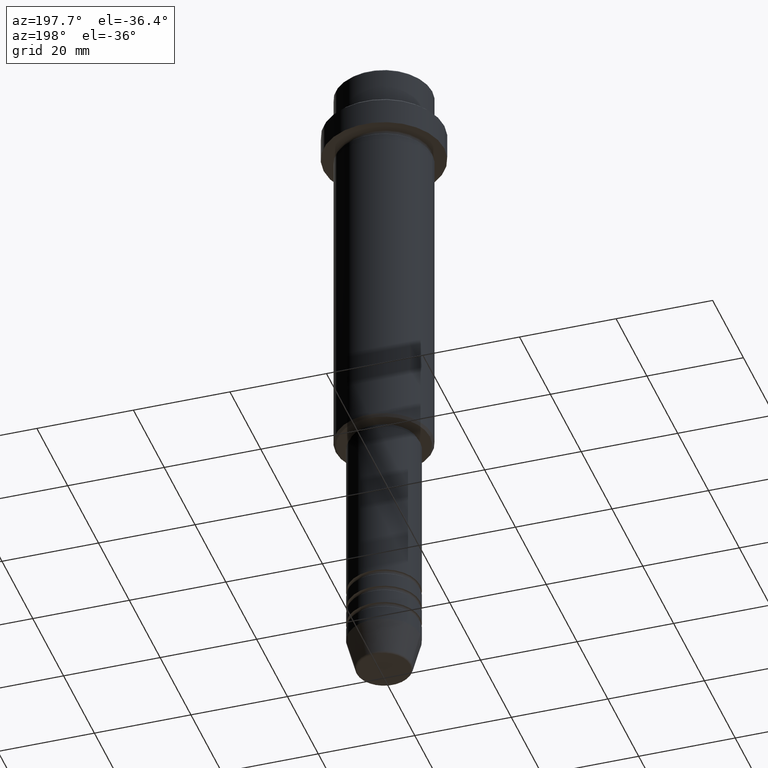
[diagram: clean part render]
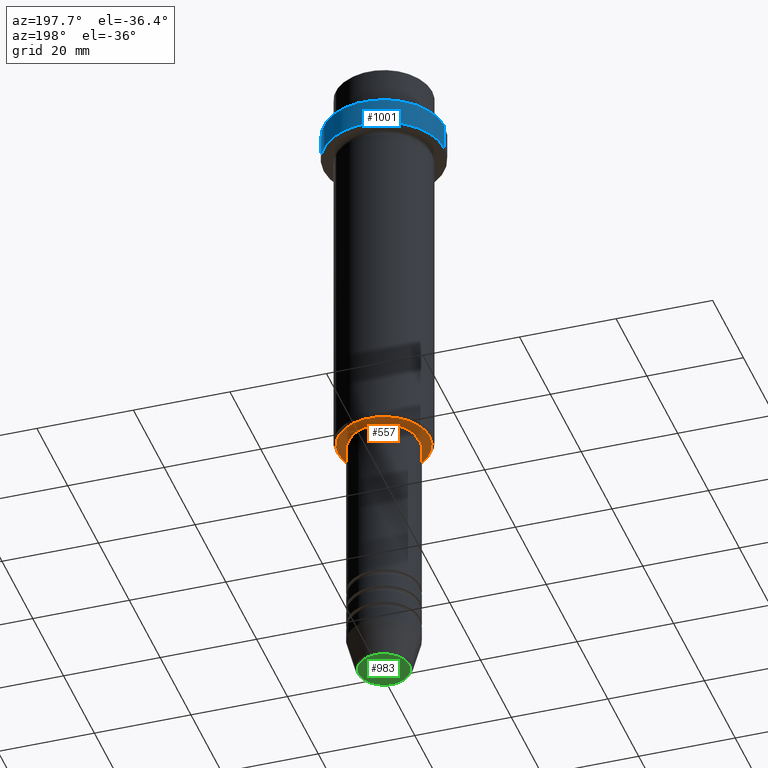
[diagram: same view with three faces highlighted in distinct colors, each labeled with its STEP entity id]
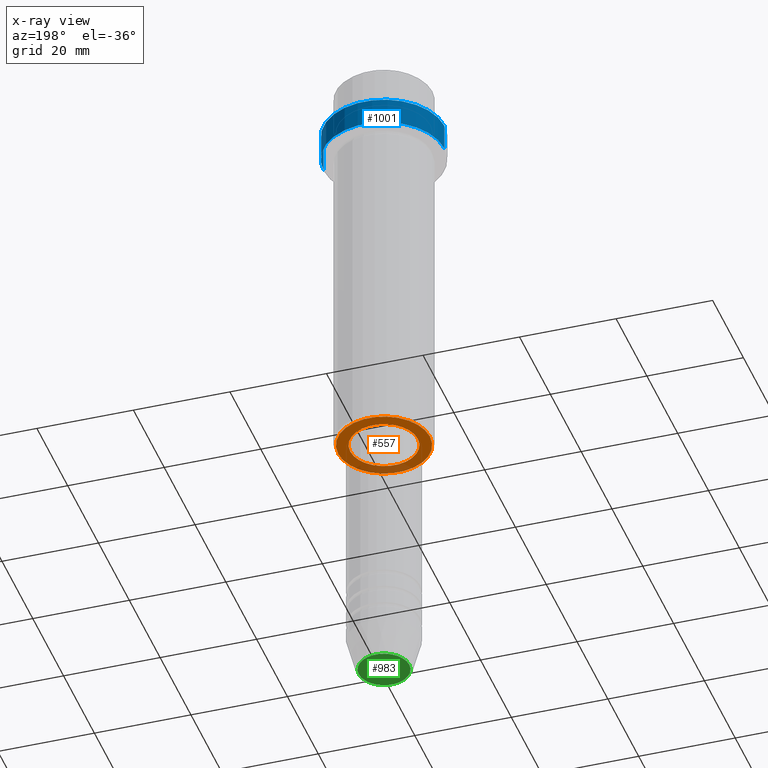
[diagram: x-ray of the same camera — body ghosted, the three highlighted faces saturated]
A machine part, auxiliary view with three faces highlighted in distinct colors.
The next image is the same camera in x-ray (body ghosted, the three faces saturated) — at least one of them is partly hidden behind the body in this view.
Their STEP definitions:

[orange] entity #557 — the highlighted planar face has unit normal (0, 0, -1).
#8 = AXIS2_PLACEMENT_3D ( 'NONE', #1003, #464, #1097 ) ;
#21 = CARTESIAN_POINT ( 'NONE',  ( 9.500000000000023093, 0.000000000000000000, -85.00000000000001421 ) ) ;
#48 = ORIENTED_EDGE ( 'NONE', *, *, #937, .T. ) ;
#57 = VERTEX_POINT ( 'NONE', #1059 ) ;
#81 = FACE_BOUND ( 'NONE', #94, .T. ) ;
#94 = EDGE_LOOP ( 'NONE', ( #165, #48 ) ) ;
#104 = AXIS2_PLACEMENT_3D ( 'NONE', #1149, #163, #834 ) ;
#126 = CARTESIAN_POINT ( 'NONE',  ( 0.000000000000000000, 0.000000000000000000, -85.00000000000001421 ) ) ;
#129 = AXIS2_PLACEMENT_3D ( 'NONE', #319, #531, #752 ) ;
#145 = ORIENTED_EDGE ( 'NONE', *, *, #1279, .T. ) ;
#149 = ORIENTED_EDGE ( 'NONE', *, *, #1413, .T. ) ;
#163 = DIRECTION ( 'NONE',  ( 0.000000000000000000, 0.000000000000000000, -1.000000000000000000 ) ) ;
#165 = ORIENTED_EDGE ( 'NONE', *, *, #1355, .T. ) ;
#173 = FACE_OUTER_BOUND ( 'NONE', #916, .T. ) ;
#187 = CARTESIAN_POINT ( 'NONE',  ( 0.000000000000000000, 10.00000000000000000, -85.00000000000001421 ) ) ;
#232 = DIRECTION ( 'NONE',  ( -0.000000000000000000, -0.000000000000000000, 1.000000000000000000 ) ) ;
#319 = CARTESIAN_POINT ( 'NONE',  ( 0.000000000000000000, 0.000000000000000000, -85.00000000000001421 ) ) ;
#447 = CIRCLE ( 'NONE', #104, 9.500000000000023093 ) ;
#464 = DIRECTION ( 'NONE',  ( -0.000000000000000000, -0.000000000000000000, 1.000000000000000000 ) ) ;
#511 = AXIS2_PLACEMENT_3D ( 'NONE', #187, #1255, #1284 ) ;
#531 = DIRECTION ( 'NONE',  ( 0.000000000000000000, 0.000000000000000000, -1.000000000000000000 ) ) ;
#557 = ADVANCED_FACE ( 'NONE', ( #173, #81 ), #627, .T. ) ;
#627 = PLANE ( 'NONE',  #511 ) ;
#713 = CIRCLE ( 'NONE', #129, 9.500000000000023093 ) ;
#752 = DIRECTION ( 'NONE',  ( -1.000000000000000000, 0.000000000000000000, 0.000000000000000000 ) ) ;
#802 = CIRCLE ( 'NONE', #8, 6.999999999999993783 ) ;
#834 = DIRECTION ( 'NONE',  ( -1.000000000000000000, 0.000000000000000000, 0.000000000000000000 ) ) ;
#879 = VERTEX_POINT ( 'NONE', #1402 ) ;
#916 = EDGE_LOOP ( 'NONE', ( #145, #149 ) ) ;
#937 = EDGE_CURVE ( 'NONE', #57, #1285, #802, .T. ) ;
#967 = CIRCLE ( 'NONE', #1220, 6.999999999999993783 ) ;
#1003 = CARTESIAN_POINT ( 'NONE',  ( 0.000000000000000000, 0.000000000000000000, -85.00000000000001421 ) ) ;
#1059 = CARTESIAN_POINT ( 'NONE',  ( -6.999999999999993783, 8.572527594031465301E-16, -85.00000000000001421 ) ) ;
#1097 = DIRECTION ( 'NONE',  ( 1.000000000000000000, 0.000000000000000000, 0.000000000000000000 ) ) ;
#1113 = DIRECTION ( 'NONE',  ( 1.000000000000000000, 0.000000000000000000, 0.000000000000000000 ) ) ;
#1149 = CARTESIAN_POINT ( 'NONE',  ( 0.000000000000000000, 0.000000000000000000, -85.00000000000001421 ) ) ;
#1191 = CARTESIAN_POINT ( 'NONE',  ( 6.999999999999993783, 0.000000000000000000, -85.00000000000001421 ) ) ;
#1220 = AXIS2_PLACEMENT_3D ( 'NONE', #126, #232, #1113 ) ;
#1255 = DIRECTION ( 'NONE',  ( 0.000000000000000000, 0.000000000000000000, -1.000000000000000000 ) ) ;
#1279 = EDGE_CURVE ( 'NONE', #1345, #879, #713, .T. ) ;
#1284 = DIRECTION ( 'NONE',  ( -1.000000000000000000, 0.000000000000000000, -0.000000000000000000 ) ) ;
#1285 = VERTEX_POINT ( 'NONE', #1191 ) ;
#1345 = VERTEX_POINT ( 'NONE', #21 ) ;
#1355 = EDGE_CURVE ( 'NONE', #1285, #57, #967, .T. ) ;
#1402 = CARTESIAN_POINT ( 'NONE',  ( -9.500000000000023093, 1.194030629168670653E-15, -85.00000000000001421 ) ) ;
#1413 = EDGE_CURVE ( 'NONE', #879, #1345, #447, .T. ) ;

[blue] entity #1001 — the highlighted cylindrical surface (partial cylindrical patch) has radius 12.5 mm, axis along (-0, -0, 1).
#3 = CYLINDRICAL_SURFACE ( 'NONE', #897, 12.50000000000000000 ) ;
#16 = CARTESIAN_POINT ( 'NONE',  ( -12.50000000000000000, 1.530808498934191521E-15, -9.500000000000031974 ) ) ;
#98 = CIRCLE ( 'NONE', #891, 12.50000000000000000 ) ;
#160 = VERTEX_POINT ( 'NONE', #974 ) ;
#224 = DIRECTION ( 'NONE',  ( 1.000000000000000000, 0.000000000000000000, 0.000000000000000000 ) ) ;
#230 = DIRECTION ( 'NONE',  ( -0.000000000000000000, -0.000000000000000000, 1.000000000000000000 ) ) ;
#233 = LINE ( 'NONE', #454, #1146 ) ;
#249 = EDGE_CURVE ( 'NONE', #807, #1233, #98, .T. ) ;
#270 = ORIENTED_EDGE ( 'NONE', *, *, #832, .T. ) ;
#322 = DIRECTION ( 'NONE',  ( 1.000000000000000000, 0.000000000000000000, 0.000000000000000000 ) ) ;
#344 = FACE_OUTER_BOUND ( 'NONE', #472, .T. ) ;
#400 = DIRECTION ( 'NONE',  ( 0.000000000000000000, 0.000000000000000000, -1.000000000000000000 ) ) ;
#454 = CARTESIAN_POINT ( 'NONE',  ( -12.50000000000000000, 1.530808498934191521E-15, 0.000000000000000000 ) ) ;
#472 = EDGE_LOOP ( 'NONE', ( #1357, #270, #519, #829 ) ) ;
#519 = ORIENTED_EDGE ( 'NONE', *, *, #669, .T. ) ;
#525 = CARTESIAN_POINT ( 'NONE',  ( 12.50000000000000000, 0.000000000000000000, 0.000000000000000000 ) ) ;
#550 = DIRECTION ( 'NONE',  ( -0.000000000000000000, -0.000000000000000000, 1.000000000000000000 ) ) ;
#669 = EDGE_CURVE ( 'NONE', #785, #160, #801, .T. ) ;
#741 = CARTESIAN_POINT ( 'NONE',  ( -12.50000000000000000, 1.530808498934191521E-15, -15.00000000000000000 ) ) ;
#758 = AXIS2_PLACEMENT_3D ( 'NONE', #821, #400, #1263 ) ;
#761 = CARTESIAN_POINT ( 'NONE',  ( 0.000000000000000000, 0.000000000000000000, 0.000000000000000000 ) ) ;
#769 = DIRECTION ( 'NONE',  ( -0.000000000000000000, -0.000000000000000000, 1.000000000000000000 ) ) ;
#771 = CARTESIAN_POINT ( 'NONE',  ( 0.000000000000000000, 0.000000000000000000, -15.00000000000000000 ) ) ;
#785 = VERTEX_POINT ( 'NONE', #16 ) ;
#801 = CIRCLE ( 'NONE', #758, 12.50000000000000000 ) ;
#807 = VERTEX_POINT ( 'NONE', #1291 ) ;
#821 = CARTESIAN_POINT ( 'NONE',  ( 0.000000000000000000, 0.000000000000000000, -9.500000000000031974 ) ) ;
#829 = ORIENTED_EDGE ( 'NONE', *, *, #1240, .F. ) ;
#832 = EDGE_CURVE ( 'NONE', #1233, #785, #233, .T. ) ;
#855 = DIRECTION ( 'NONE',  ( -0.000000000000000000, -0.000000000000000000, 1.000000000000000000 ) ) ;
#891 = AXIS2_PLACEMENT_3D ( 'NONE', #771, #550, #322 ) ;
#897 = AXIS2_PLACEMENT_3D ( 'NONE', #761, #230, #224 ) ;
#974 = CARTESIAN_POINT ( 'NONE',  ( 12.50000000000000000, 0.000000000000000000, -9.500000000000031974 ) ) ;
#1001 = ADVANCED_FACE ( 'NONE', ( #344 ), #3, .T. ) ;
#1093 = LINE ( 'NONE', #525, #1261 ) ;
#1146 = VECTOR ( 'NONE', #769, 1000.000000000000000 ) ;
#1233 = VERTEX_POINT ( 'NONE', #741 ) ;
#1240 = EDGE_CURVE ( 'NONE', #807, #160, #1093, .T. ) ;
#1261 = VECTOR ( 'NONE', #855, 1000.000000000000000 ) ;
#1263 = DIRECTION ( 'NONE',  ( 1.000000000000000000, 0.000000000000000000, 0.000000000000000000 ) ) ;
#1291 = CARTESIAN_POINT ( 'NONE',  ( 12.50000000000000000, 0.000000000000000000, -15.00000000000000000 ) ) ;
#1357 = ORIENTED_EDGE ( 'NONE', *, *, #249, .T. ) ;

[green] entity #983 — the highlighted planar face has unit normal (0, -0, 1).
#82 = VERTEX_POINT ( 'NONE', #521 ) ;
#138 = DIRECTION ( 'NONE',  ( 1.000000000000000000, 0.000000000000000000, 0.000000000000000000 ) ) ;
#174 = ORIENTED_EDGE ( 'NONE', *, *, #766, .T. ) ;
#215 = AXIS2_PLACEMENT_3D ( 'NONE', #1184, #1084, #1069 ) ;
#217 = DIRECTION ( 'NONE',  ( 1.000000000000000000, 0.000000000000000000, 0.000000000000000000 ) ) ;
#310 = AXIS2_PLACEMENT_3D ( 'NONE', #981, #1112, #138 ) ;
#326 = VERTEX_POINT ( 'NONE', #893 ) ;
#444 = CIRCLE ( 'NONE', #215, 5.240692158992658278 ) ;
#521 = CARTESIAN_POINT ( 'NONE',  ( 5.240692158992658278, 0.000000000000000000, -140.0000000000000000 ) ) ;
#564 = FACE_OUTER_BOUND ( 'NONE', #1180, .T. ) ;
#689 = AXIS2_PLACEMENT_3D ( 'NONE', #1406, #1190, #217 ) ;
#726 = EDGE_CURVE ( 'NONE', #326, #82, #444, .T. ) ;
#766 = EDGE_CURVE ( 'NONE', #82, #326, #1126, .T. ) ;
#893 = CARTESIAN_POINT ( 'NONE',  ( -5.240692158992658278, 6.713726370671660431E-16, -140.0000000000000000 ) ) ;
#981 = CARTESIAN_POINT ( 'NONE',  ( 0.000000000000000000, 0.000000000000000000, -140.0000000000000000 ) ) ;
#983 = ADVANCED_FACE ( 'NONE', ( #564 ), #1221, .F. ) ;
#1069 = DIRECTION ( 'NONE',  ( 1.000000000000000000, 0.000000000000000000, 0.000000000000000000 ) ) ;
#1084 = DIRECTION ( 'NONE',  ( 0.000000000000000000, 0.000000000000000000, -1.000000000000000000 ) ) ;
#1112 = DIRECTION ( 'NONE',  ( 0.000000000000000000, -0.000000000000000000, 1.000000000000000000 ) ) ;
#1126 = CIRCLE ( 'NONE', #689, 5.240692158992658278 ) ;
#1180 = EDGE_LOOP ( 'NONE', ( #174, #1307 ) ) ;
#1184 = CARTESIAN_POINT ( 'NONE',  ( 0.000000000000000000, 0.000000000000000000, -140.0000000000000000 ) ) ;
#1190 = DIRECTION ( 'NONE',  ( 0.000000000000000000, 0.000000000000000000, -1.000000000000000000 ) ) ;
#1221 = PLANE ( 'NONE',  #310 ) ;
#1307 = ORIENTED_EDGE ( 'NONE', *, *, #726, .T. ) ;
#1406 = CARTESIAN_POINT ( 'NONE',  ( 0.000000000000000000, 0.000000000000000000, -140.0000000000000000 ) ) ;